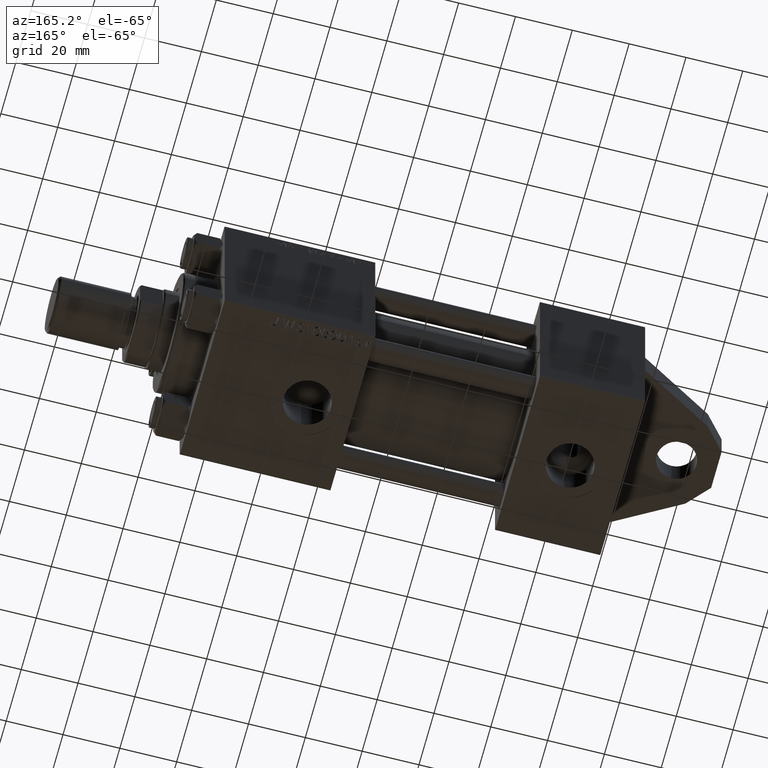
[diagram: clean part render]
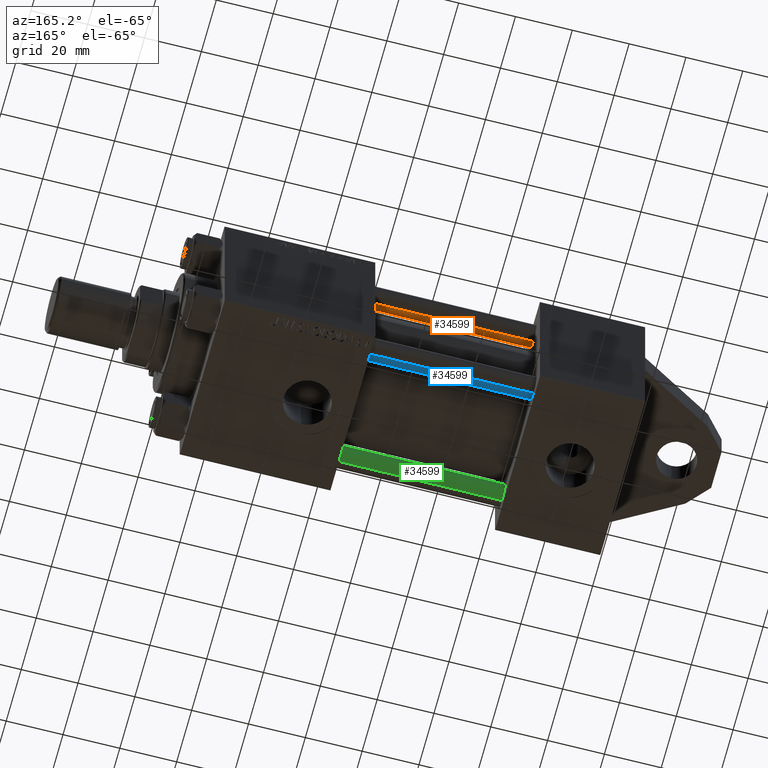
[diagram: same view with three faces highlighted in distinct colors, each labeled with its STEP entity id]
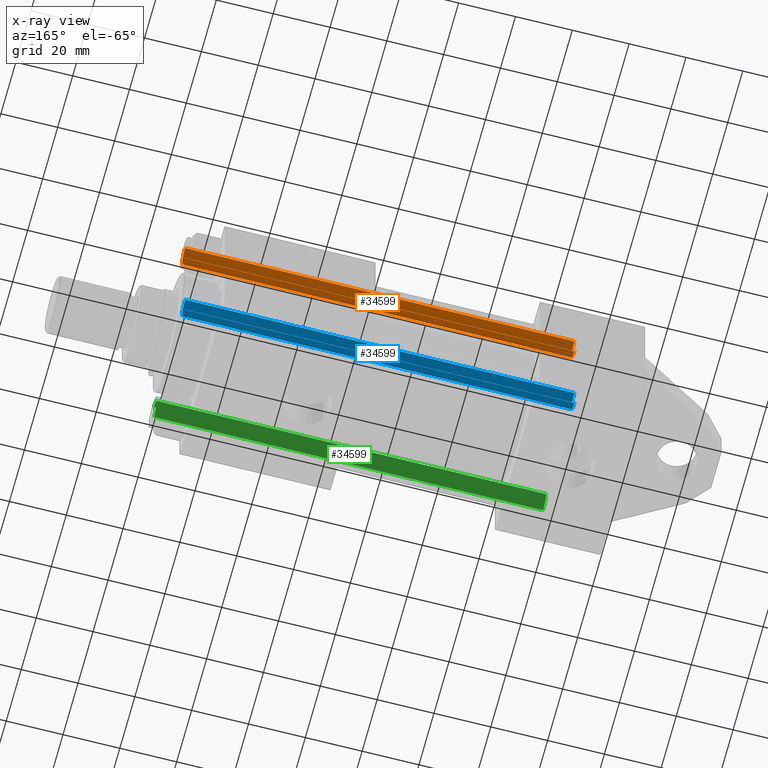
[diagram: x-ray of the same camera — body ghosted, the three highlighted faces saturated]
A machine part, auxiliary view with three faces highlighted in distinct colors.
The next image is the same camera in x-ray (body ghosted, the three faces saturated) — at least one of them is partly hidden behind the body in this view.
Their STEP definitions:

[orange] entity #34599 — the highlighted cylindrical surface (edge-blend (fillet) strip) has radius 4 mm, axis along (-1, 0, -0).
#158 = AXIS2_PLACEMENT_3D ( 'NONE', #27310, #9431, #12733 ) ;
#2301 = EDGE_CURVE ( 'NONE', #14824, #7107, #19813, .T. ) ;
#3597 = CIRCLE ( 'NONE', #41930, 4.000000000000000000 ) ;
#4755 = DIRECTION ( 'NONE',  ( -0.000000000000000000, -0.000000000000000000, -1.000000000000000000 ) ) ;
#6541 = CARTESIAN_POINT ( 'NONE',  ( 0.000000000000000000, 0.000000000000000000, 0.5000000000000281997 ) ) ;
#6609 = VERTEX_POINT ( 'NONE', #23657 ) ;
#7107 = VERTEX_POINT ( 'NONE', #37652 ) ;
#7674 = LINE ( 'NONE', #18735, #33933 ) ;
#9235 = CARTESIAN_POINT ( 'NONE',  ( 4.000000000000000000, 4.898587196589412829E-16, 138.0000000000000000 ) ) ;
#9431 = DIRECTION ( 'NONE',  ( -0.000000000000000000, -0.000000000000000000, -1.000000000000000000 ) ) ;
#12270 = FACE_OUTER_BOUND ( 'NONE', #23927, .T. ) ;
#12733 = DIRECTION ( 'NONE',  ( -1.000000000000000000, 0.000000000000000000, 0.000000000000000000 ) ) ;
#13780 = VECTOR ( 'NONE', #4755, 1000.000000000000000 ) ;
#14824 = VERTEX_POINT ( 'NONE', #37969 ) ;
#14975 = DIRECTION ( 'NONE',  ( -0.000000000000000000, -0.000000000000000000, -1.000000000000000000 ) ) ;
#15302 = VERTEX_POINT ( 'NONE', #32708 ) ;
#16177 = DIRECTION ( 'NONE',  ( 0.000000000000000000, 0.000000000000000000, -1.000000000000000000 ) ) ;
#18035 = CIRCLE ( 'NONE', #41298, 4.000000000000000000 ) ;
#18735 = CARTESIAN_POINT ( 'NONE',  ( -4.000000000000000000, 0.000000000000000000, 138.0000000000000000 ) ) ;
#19230 = DIRECTION ( 'NONE',  ( 1.000000000000000000, 0.000000000000000000, 0.000000000000000000 ) ) ;
#19813 = LINE ( 'NONE', #9235, #13780 ) ;
#20258 = EDGE_CURVE ( 'NONE', #6609, #7107, #3597, .T. ) ;
#22635 = ORIENTED_EDGE ( 'NONE', *, *, #32208, .T. ) ;
#23657 = CARTESIAN_POINT ( 'NONE',  ( -4.000000000000000000, 0.000000000000000000, 0.5000000000000281997 ) ) ;
#23927 = EDGE_LOOP ( 'NONE', ( #30046, #33725, #22635, #42816 ) ) ;
#24885 = DIRECTION ( 'NONE',  ( -0.000000000000000000, -0.000000000000000000, 1.000000000000000000 ) ) ;
#27310 = CARTESIAN_POINT ( 'NONE',  ( 0.000000000000000000, 0.000000000000000000, 138.0000000000000000 ) ) ;
#30046 = ORIENTED_EDGE ( 'NONE', *, *, #2301, .F. ) ;
#32208 = EDGE_CURVE ( 'NONE', #15302, #6609, #7674, .T. ) ;
#32708 = CARTESIAN_POINT ( 'NONE',  ( -4.000000000000000000, 0.000000000000000000, 137.5000000000000284 ) ) ;
#33725 = ORIENTED_EDGE ( 'NONE', *, *, #44429, .T. ) ;
#33933 = VECTOR ( 'NONE', #14975, 1000.000000000000000 ) ;
#34357 = CYLINDRICAL_SURFACE ( 'NONE', #158, 4.000000000000000000 ) ;
#34599 = ADVANCED_FACE ( 'NONE', ( #12270 ), #34357, .T. ) ;
#35684 = DIRECTION ( 'NONE',  ( 1.000000000000000000, 0.000000000000000000, 0.000000000000000000 ) ) ;
#37652 = CARTESIAN_POINT ( 'NONE',  ( 4.000000000000000000, 4.898587196589412829E-16, 0.5000000000000281997 ) ) ;
#37969 = CARTESIAN_POINT ( 'NONE',  ( 4.000000000000000000, 4.898587196589412829E-16, 137.5000000000000284 ) ) ;
#40395 = CARTESIAN_POINT ( 'NONE',  ( 0.000000000000000000, 0.000000000000000000, 137.5000000000000284 ) ) ;
#41298 = AXIS2_PLACEMENT_3D ( 'NONE', #40395, #16177, #19230 ) ;
#41930 = AXIS2_PLACEMENT_3D ( 'NONE', #6541, #24885, #35684 ) ;
#42816 = ORIENTED_EDGE ( 'NONE', *, *, #20258, .T. ) ;
#44429 = EDGE_CURVE ( 'NONE', #14824, #15302, #18035, .T. ) ;

[blue] entity #34599 — the highlighted cylindrical surface (edge-blend (fillet) strip) has radius 4 mm, axis along (1, -0, -0).
#158 = AXIS2_PLACEMENT_3D ( 'NONE', #27310, #9431, #12733 ) ;
#2301 = EDGE_CURVE ( 'NONE', #14824, #7107, #19813, .T. ) ;
#3597 = CIRCLE ( 'NONE', #41930, 4.000000000000000000 ) ;
#4755 = DIRECTION ( 'NONE',  ( -0.000000000000000000, -0.000000000000000000, -1.000000000000000000 ) ) ;
#6541 = CARTESIAN_POINT ( 'NONE',  ( 0.000000000000000000, 0.000000000000000000, 0.5000000000000281997 ) ) ;
#6609 = VERTEX_POINT ( 'NONE', #23657 ) ;
#7107 = VERTEX_POINT ( 'NONE', #37652 ) ;
#7674 = LINE ( 'NONE', #18735, #33933 ) ;
#9235 = CARTESIAN_POINT ( 'NONE',  ( 4.000000000000000000, 4.898587196589412829E-16, 138.0000000000000000 ) ) ;
#9431 = DIRECTION ( 'NONE',  ( -0.000000000000000000, -0.000000000000000000, -1.000000000000000000 ) ) ;
#12270 = FACE_OUTER_BOUND ( 'NONE', #23927, .T. ) ;
#12733 = DIRECTION ( 'NONE',  ( -1.000000000000000000, 0.000000000000000000, 0.000000000000000000 ) ) ;
#13780 = VECTOR ( 'NONE', #4755, 1000.000000000000000 ) ;
#14824 = VERTEX_POINT ( 'NONE', #37969 ) ;
#14975 = DIRECTION ( 'NONE',  ( -0.000000000000000000, -0.000000000000000000, -1.000000000000000000 ) ) ;
#15302 = VERTEX_POINT ( 'NONE', #32708 ) ;
#16177 = DIRECTION ( 'NONE',  ( 0.000000000000000000, 0.000000000000000000, -1.000000000000000000 ) ) ;
#18035 = CIRCLE ( 'NONE', #41298, 4.000000000000000000 ) ;
#18735 = CARTESIAN_POINT ( 'NONE',  ( -4.000000000000000000, 0.000000000000000000, 138.0000000000000000 ) ) ;
#19230 = DIRECTION ( 'NONE',  ( 1.000000000000000000, 0.000000000000000000, 0.000000000000000000 ) ) ;
#19813 = LINE ( 'NONE', #9235, #13780 ) ;
#20258 = EDGE_CURVE ( 'NONE', #6609, #7107, #3597, .T. ) ;
#22635 = ORIENTED_EDGE ( 'NONE', *, *, #32208, .T. ) ;
#23657 = CARTESIAN_POINT ( 'NONE',  ( -4.000000000000000000, 0.000000000000000000, 0.5000000000000281997 ) ) ;
#23927 = EDGE_LOOP ( 'NONE', ( #30046, #33725, #22635, #42816 ) ) ;
#24885 = DIRECTION ( 'NONE',  ( -0.000000000000000000, -0.000000000000000000, 1.000000000000000000 ) ) ;
#27310 = CARTESIAN_POINT ( 'NONE',  ( 0.000000000000000000, 0.000000000000000000, 138.0000000000000000 ) ) ;
#30046 = ORIENTED_EDGE ( 'NONE', *, *, #2301, .F. ) ;
#32208 = EDGE_CURVE ( 'NONE', #15302, #6609, #7674, .T. ) ;
#32708 = CARTESIAN_POINT ( 'NONE',  ( -4.000000000000000000, 0.000000000000000000, 137.5000000000000284 ) ) ;
#33725 = ORIENTED_EDGE ( 'NONE', *, *, #44429, .T. ) ;
#33933 = VECTOR ( 'NONE', #14975, 1000.000000000000000 ) ;
#34357 = CYLINDRICAL_SURFACE ( 'NONE', #158, 4.000000000000000000 ) ;
#34599 = ADVANCED_FACE ( 'NONE', ( #12270 ), #34357, .T. ) ;
#35684 = DIRECTION ( 'NONE',  ( 1.000000000000000000, 0.000000000000000000, 0.000000000000000000 ) ) ;
#37652 = CARTESIAN_POINT ( 'NONE',  ( 4.000000000000000000, 4.898587196589412829E-16, 0.5000000000000281997 ) ) ;
#37969 = CARTESIAN_POINT ( 'NONE',  ( 4.000000000000000000, 4.898587196589412829E-16, 137.5000000000000284 ) ) ;
#40395 = CARTESIAN_POINT ( 'NONE',  ( 0.000000000000000000, 0.000000000000000000, 137.5000000000000284 ) ) ;
#41298 = AXIS2_PLACEMENT_3D ( 'NONE', #40395, #16177, #19230 ) ;
#41930 = AXIS2_PLACEMENT_3D ( 'NONE', #6541, #24885, #35684 ) ;
#42816 = ORIENTED_EDGE ( 'NONE', *, *, #20258, .T. ) ;
#44429 = EDGE_CURVE ( 'NONE', #14824, #15302, #18035, .T. ) ;

[green] entity #34599 — the highlighted cylindrical surface (edge-blend (fillet) strip) has radius 4 mm, axis along (-1, -0, 0).
#158 = AXIS2_PLACEMENT_3D ( 'NONE', #27310, #9431, #12733 ) ;
#2301 = EDGE_CURVE ( 'NONE', #14824, #7107, #19813, .T. ) ;
#3597 = CIRCLE ( 'NONE', #41930, 4.000000000000000000 ) ;
#4755 = DIRECTION ( 'NONE',  ( -0.000000000000000000, -0.000000000000000000, -1.000000000000000000 ) ) ;
#6541 = CARTESIAN_POINT ( 'NONE',  ( 0.000000000000000000, 0.000000000000000000, 0.5000000000000281997 ) ) ;
#6609 = VERTEX_POINT ( 'NONE', #23657 ) ;
#7107 = VERTEX_POINT ( 'NONE', #37652 ) ;
#7674 = LINE ( 'NONE', #18735, #33933 ) ;
#9235 = CARTESIAN_POINT ( 'NONE',  ( 4.000000000000000000, 4.898587196589412829E-16, 138.0000000000000000 ) ) ;
#9431 = DIRECTION ( 'NONE',  ( -0.000000000000000000, -0.000000000000000000, -1.000000000000000000 ) ) ;
#12270 = FACE_OUTER_BOUND ( 'NONE', #23927, .T. ) ;
#12733 = DIRECTION ( 'NONE',  ( -1.000000000000000000, 0.000000000000000000, 0.000000000000000000 ) ) ;
#13780 = VECTOR ( 'NONE', #4755, 1000.000000000000000 ) ;
#14824 = VERTEX_POINT ( 'NONE', #37969 ) ;
#14975 = DIRECTION ( 'NONE',  ( -0.000000000000000000, -0.000000000000000000, -1.000000000000000000 ) ) ;
#15302 = VERTEX_POINT ( 'NONE', #32708 ) ;
#16177 = DIRECTION ( 'NONE',  ( 0.000000000000000000, 0.000000000000000000, -1.000000000000000000 ) ) ;
#18035 = CIRCLE ( 'NONE', #41298, 4.000000000000000000 ) ;
#18735 = CARTESIAN_POINT ( 'NONE',  ( -4.000000000000000000, 0.000000000000000000, 138.0000000000000000 ) ) ;
#19230 = DIRECTION ( 'NONE',  ( 1.000000000000000000, 0.000000000000000000, 0.000000000000000000 ) ) ;
#19813 = LINE ( 'NONE', #9235, #13780 ) ;
#20258 = EDGE_CURVE ( 'NONE', #6609, #7107, #3597, .T. ) ;
#22635 = ORIENTED_EDGE ( 'NONE', *, *, #32208, .T. ) ;
#23657 = CARTESIAN_POINT ( 'NONE',  ( -4.000000000000000000, 0.000000000000000000, 0.5000000000000281997 ) ) ;
#23927 = EDGE_LOOP ( 'NONE', ( #30046, #33725, #22635, #42816 ) ) ;
#24885 = DIRECTION ( 'NONE',  ( -0.000000000000000000, -0.000000000000000000, 1.000000000000000000 ) ) ;
#27310 = CARTESIAN_POINT ( 'NONE',  ( 0.000000000000000000, 0.000000000000000000, 138.0000000000000000 ) ) ;
#30046 = ORIENTED_EDGE ( 'NONE', *, *, #2301, .F. ) ;
#32208 = EDGE_CURVE ( 'NONE', #15302, #6609, #7674, .T. ) ;
#32708 = CARTESIAN_POINT ( 'NONE',  ( -4.000000000000000000, 0.000000000000000000, 137.5000000000000284 ) ) ;
#33725 = ORIENTED_EDGE ( 'NONE', *, *, #44429, .T. ) ;
#33933 = VECTOR ( 'NONE', #14975, 1000.000000000000000 ) ;
#34357 = CYLINDRICAL_SURFACE ( 'NONE', #158, 4.000000000000000000 ) ;
#34599 = ADVANCED_FACE ( 'NONE', ( #12270 ), #34357, .T. ) ;
#35684 = DIRECTION ( 'NONE',  ( 1.000000000000000000, 0.000000000000000000, 0.000000000000000000 ) ) ;
#37652 = CARTESIAN_POINT ( 'NONE',  ( 4.000000000000000000, 4.898587196589412829E-16, 0.5000000000000281997 ) ) ;
#37969 = CARTESIAN_POINT ( 'NONE',  ( 4.000000000000000000, 4.898587196589412829E-16, 137.5000000000000284 ) ) ;
#40395 = CARTESIAN_POINT ( 'NONE',  ( 0.000000000000000000, 0.000000000000000000, 137.5000000000000284 ) ) ;
#41298 = AXIS2_PLACEMENT_3D ( 'NONE', #40395, #16177, #19230 ) ;
#41930 = AXIS2_PLACEMENT_3D ( 'NONE', #6541, #24885, #35684 ) ;
#42816 = ORIENTED_EDGE ( 'NONE', *, *, #20258, .T. ) ;
#44429 = EDGE_CURVE ( 'NONE', #14824, #15302, #18035, .T. ) ;